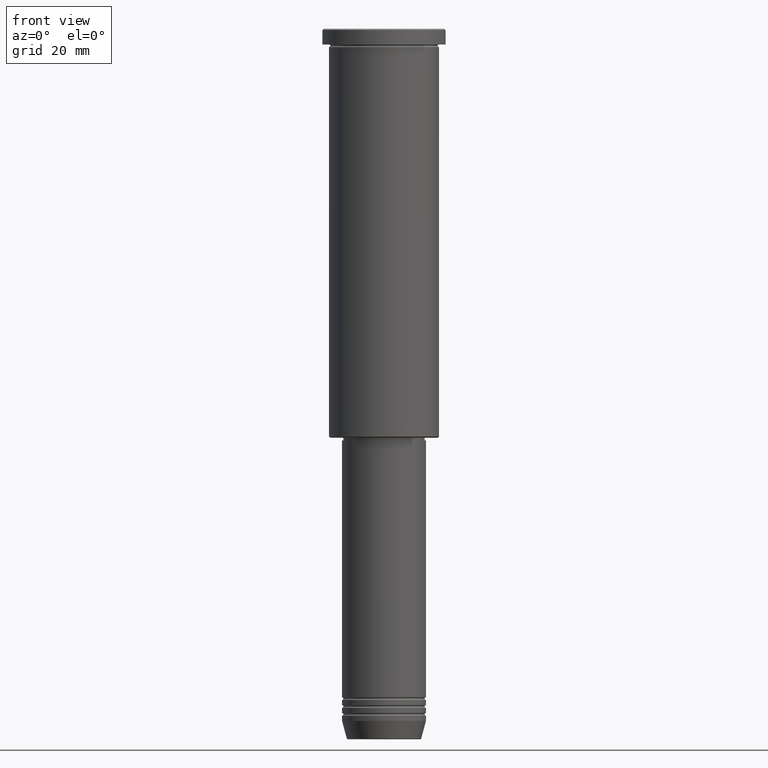
[diagram: clean part render]
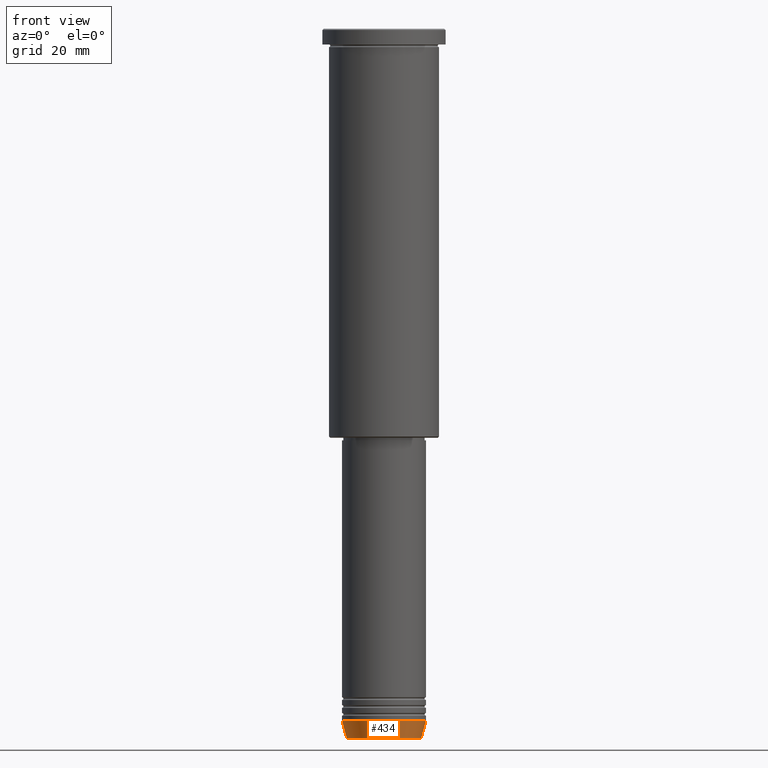
[diagram: same view with one face highlighted and labeled with its STEP entity id]
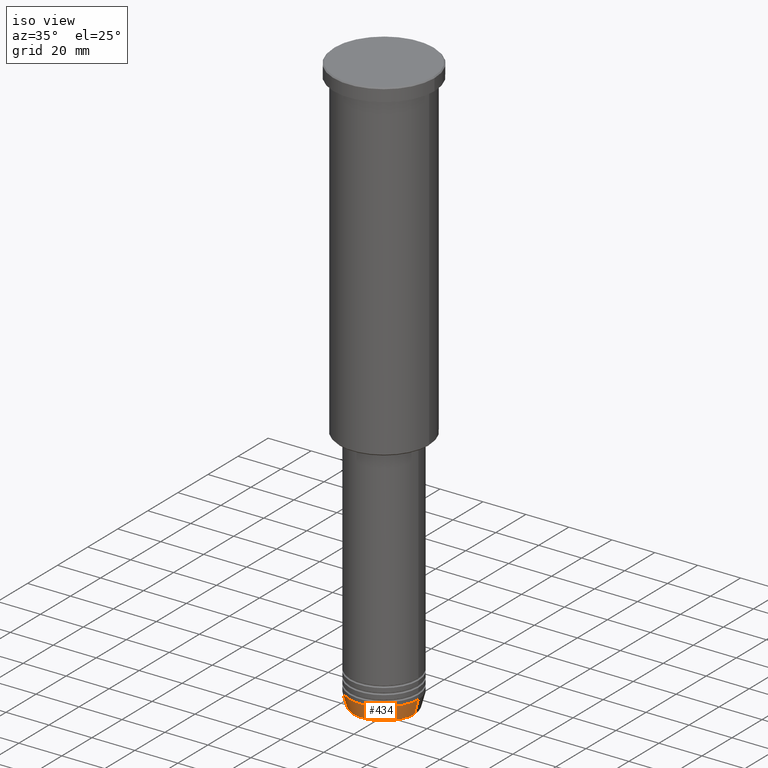
[diagram: same view with one face highlighted and labeled with its STEP entity id]
A machine part, front view. The second image highlights one B-rep face of the part: STEP entity #434.
A second angle (iso view) of the same face is appended — the face is thin or edge-on in the first view.
In plain terms, the highlighted conical surface has half-angle 15 deg.
Its self-contained STEP definition (entity closure, byte-faithful):
#3 = DIRECTION ( 'NONE',  ( -0.000000000000000000, -0.000000000000000000, 1.000000000000000000 ) ) ;
#27 = CARTESIAN_POINT ( 'NONE',  ( 16.00000000000000000, 0.000000000000000000, -264.0000000000000000 ) ) ;
#32 = CIRCLE ( 'NONE', #815, 16.00000000000000000 ) ;
#43 = VERTEX_POINT ( 'NONE', #27 ) ;
#78 = CARTESIAN_POINT ( 'NONE',  ( -16.00000000000000000, 1.959434878635765131E-15, -264.0000000000000000 ) ) ;
#94 = CARTESIAN_POINT ( 'NONE',  ( 0.000000000000000000, 0.000000000000000000, -264.0000000000000000 ) ) ;
#103 = CARTESIAN_POINT ( 'NONE',  ( 14.22365507213718772, 0.000000000000000000, -270.6294095225512706 ) ) ;
#135 = ORIENTED_EDGE ( 'NONE', *, *, #292, .T. ) ;
#174 = CARTESIAN_POINT ( 'NONE',  ( 0.000000000000000000, 0.000000000000000000, -264.0000000000000000 ) ) ;
#217 = ORIENTED_EDGE ( 'NONE', *, *, #414, .T. ) ;
#255 = DIRECTION ( 'NONE',  ( 1.000000000000000000, 0.000000000000000000, 0.000000000000000000 ) ) ;
#257 = LINE ( 'NONE', #541, #265 ) ;
#265 = VECTOR ( 'NONE', #704, 1000.000000000000000 ) ;
#267 = AXIS2_PLACEMENT_3D ( 'NONE', #1112, #844, #1100 ) ;
#268 = VECTOR ( 'NONE', #444, 1000.000000000000000 ) ;
#292 = EDGE_CURVE ( 'NONE', #396, #43, #257, .T. ) ;
#319 = EDGE_LOOP ( 'NONE', ( #443, #217, #135, #644 ) ) ;
#390 = DIRECTION ( 'NONE',  ( 1.000000000000000000, 0.000000000000000000, 0.000000000000000000 ) ) ;
#396 = VERTEX_POINT ( 'NONE', #103 ) ;
#414 = EDGE_CURVE ( 'NONE', #930, #396, #893, .T. ) ;
#434 = ADVANCED_FACE ( 'NONE', ( #640 ), #1103, .T. ) ;
#443 = ORIENTED_EDGE ( 'NONE', *, *, #723, .F. ) ;
#444 = DIRECTION ( 'NONE',  ( -0.2588190451025213501, 3.169619151431772337E-17, 0.9659258262890680902 ) ) ;
#541 = CARTESIAN_POINT ( 'NONE',  ( 16.00000000000000000, 0.000000000000000000, -264.0000000000000000 ) ) ;
#542 = VERTEX_POINT ( 'NONE', #945 ) ;
#640 = FACE_OUTER_BOUND ( 'NONE', #319, .T. ) ;
#644 = ORIENTED_EDGE ( 'NONE', *, *, #737, .F. ) ;
#704 = DIRECTION ( 'NONE',  ( 0.2588190451025213501, 0.000000000000000000, 0.9659258262890680902 ) ) ;
#723 = EDGE_CURVE ( 'NONE', #930, #542, #896, .T. ) ;
#737 = EDGE_CURVE ( 'NONE', #542, #43, #32, .T. ) ;
#750 = CARTESIAN_POINT ( 'NONE',  ( -14.22365507213718772, 1.850665122131323337E-15, -270.6294095225512706 ) ) ;
#804 = DIRECTION ( 'NONE',  ( -0.000000000000000000, -0.000000000000000000, 1.000000000000000000 ) ) ;
#815 = AXIS2_PLACEMENT_3D ( 'NONE', #174, #804, #255 ) ;
#844 = DIRECTION ( 'NONE',  ( -0.000000000000000000, -0.000000000000000000, 1.000000000000000000 ) ) ;
#893 = CIRCLE ( 'NONE', #267, 14.22365507213718772 ) ;
#896 = LINE ( 'NONE', #78, #268 ) ;
#930 = VERTEX_POINT ( 'NONE', #750 ) ;
#945 = CARTESIAN_POINT ( 'NONE',  ( -16.00000000000000000, 1.959434878635765131E-15, -264.0000000000000000 ) ) ;
#1087 = AXIS2_PLACEMENT_3D ( 'NONE', #94, #3, #390 ) ;
#1100 = DIRECTION ( 'NONE',  ( 1.000000000000000000, 0.000000000000000000, 0.000000000000000000 ) ) ;
#1103 = CONICAL_SURFACE ( 'NONE', #1087, 16.00000000000000000, 0.2617993877991500740 ) ;
#1112 = CARTESIAN_POINT ( 'NONE',  ( 0.000000000000000000, 0.000000000000000000, -270.6294095225512706 ) ) ;